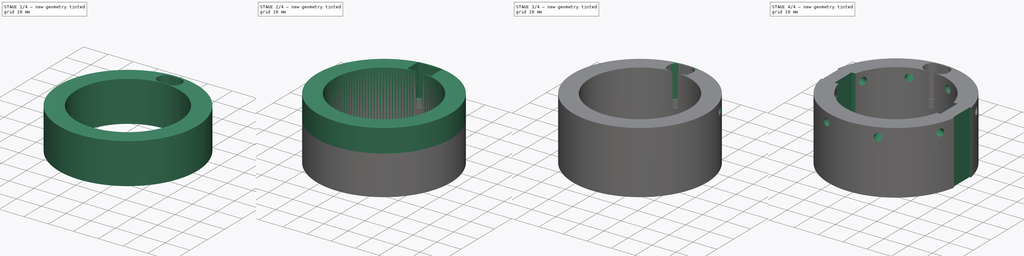
[diagram: build sequence overview — one tinted view per stage of 4, left to right]
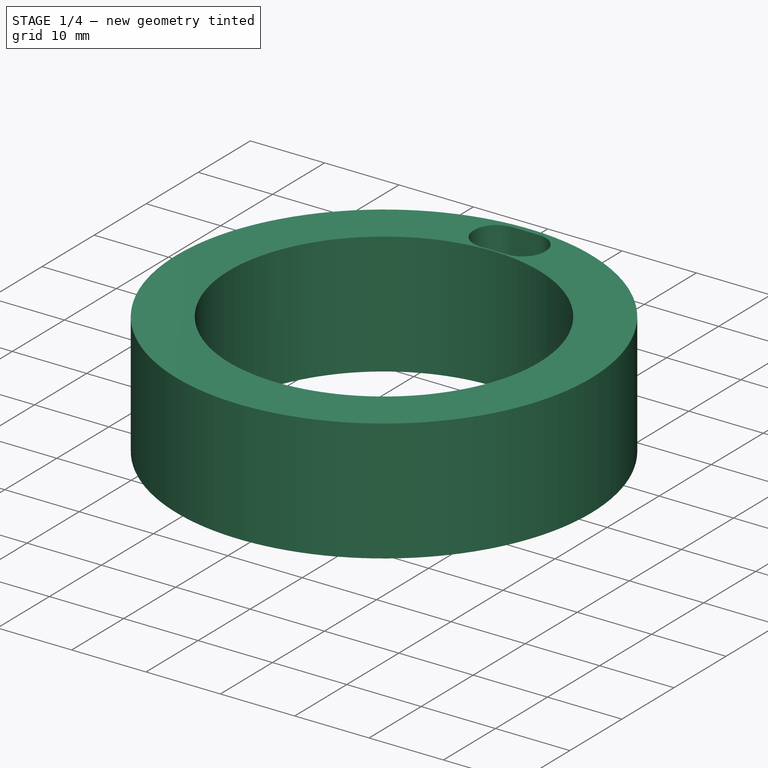
[diagram: stage 1 of 4 — iso view after this stage's code; geometry added in this stage tinted green]
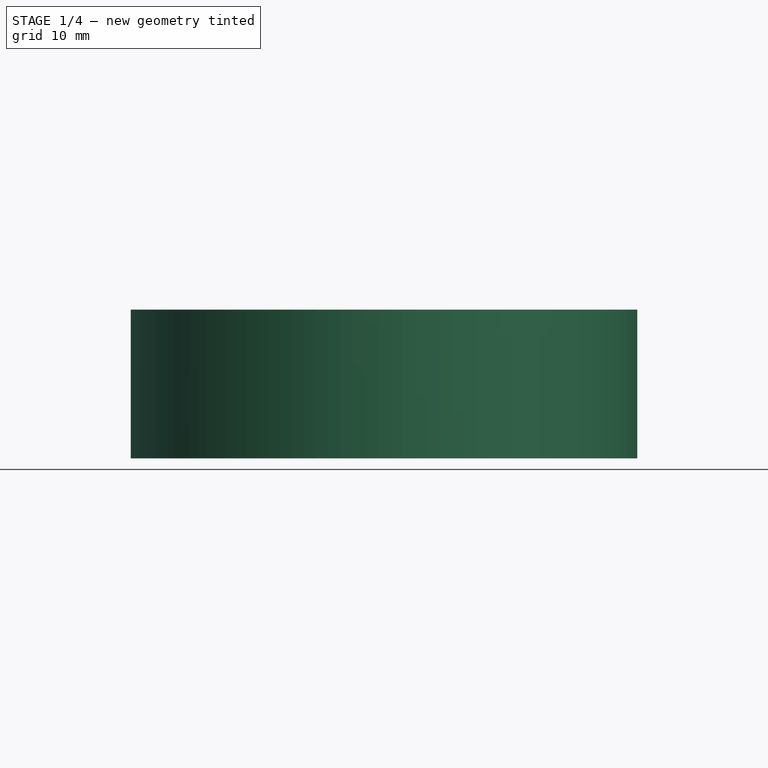
[diagram: stage 1 of 4 — front view after this stage's code; geometry added in this stage tinted green]
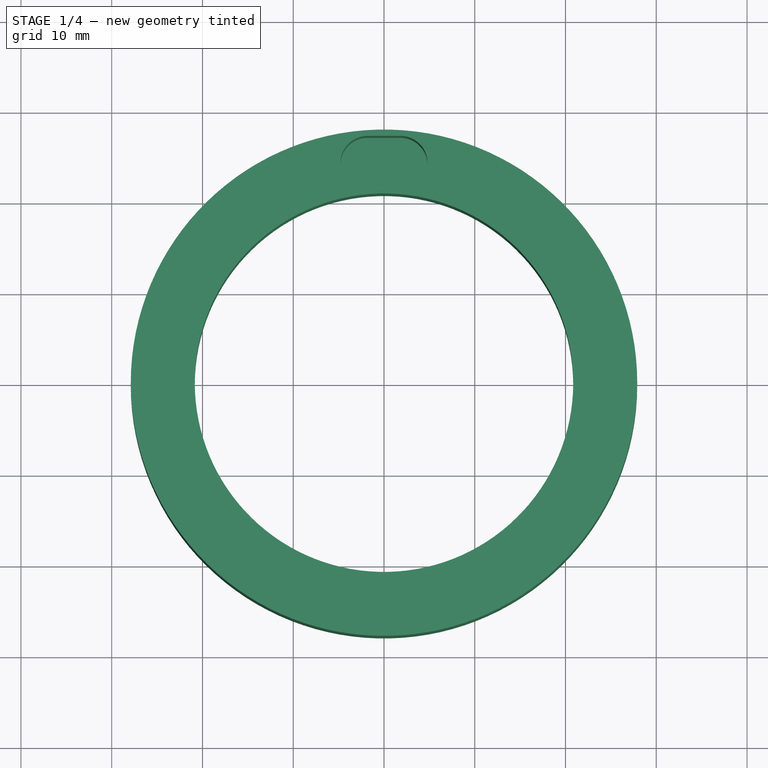
[diagram: stage 1 of 4 — top view after this stage's code; geometry added in this stage tinted green]
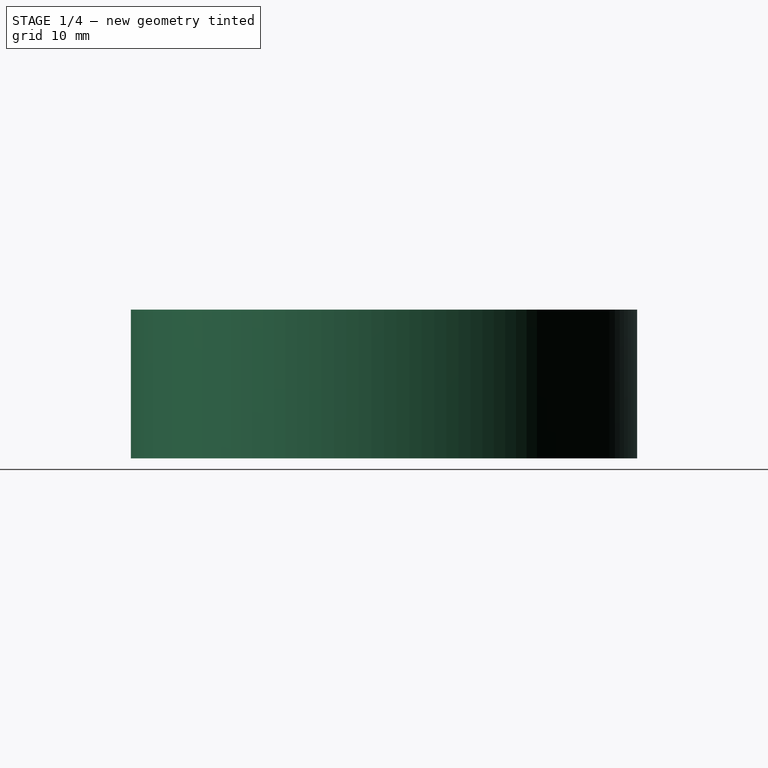
[diagram: stage 1 of 4 — right view after this stage's code; geometry added in this stage tinted green]
FCSTD DOCUMENT  (FreeCAD 1.0R39319 (Git))
Label: upper_closure
License: All rights reserved
objects: Sketcher::SketchObject×9, PartDesign::Pocket×6, PartDesign::Pad×2, PartDesign::Fillet×2, PartDesign::Plane×2, PartDesign::PolarPattern×1, PartDesign::Body×1
note: 53 computed .brp shape members not serialized (recipe doc carries the construction recipe); baked Part::Feature solids carry a one-line shape summary decoded from their .brp

FEATURE [Sketcher::SketchObject] Sketch
  ArcFitTolerance = 1e-06
  AttachmentSupport = -> [XY_Plane]
  FullyConstrained = true
  MakeInternals = false
  MapMode = 5
  sketch-geometry (2):
    g0: Circle CenterX=0 CenterY=0 CenterZ=0 NormalX=0 NormalY=0 NormalZ=1 AngleXU=0 Radius=27.9
    g1: Circle CenterX=0 CenterY=0 CenterZ=0 NormalX=0 NormalY=0 NormalZ=1 AngleXU=0 Radius=20.85
  constraints (4):
    c: Diameter(g0) = 55.8
    c: Coincident(g0,g-1)
    c: Diameter(g1) = 41.7
    c: Coincident(g1,g0)
FEATURE [PartDesign::Pad] Pad
  Direction = (0,0,1)
  Length = 16.4
  Length2 = 10
  Profile = -> Sketch
  ReferenceAxis = -> Sketch [N_Axis]
  Refine = true
  Suppressed = false
  Type = 0
FEATURE [Sketcher::SketchObject] Sketch001
  ArcFitTolerance = 1e-06
  AttachmentSupport = -> [Pad]
  ExternalGeometry = -> [Pad]
  FullyConstrained = false
  MakeInternals = false
  MapMode = 5
  Placement = pos=(0,0,16.4) rot=(0,0,1;0rad)
  sketch-geometry (8):
    g0: LineSegment StartX=-4.8 StartY=27.2 StartZ=0 EndX=4.8 EndY=27.2 EndZ=0
    g1: LineSegment StartX=4.8 StartY=27.2 StartZ=0 EndX=4.8 EndY=21.05 EndZ=0
    g2: LineSegment StartX=4.8 StartY=21.05 StartZ=0 EndX=-4.8 EndY=21.05 EndZ=0
    g3: LineSegment StartX=-4.8 StartY=21.05 StartZ=0 EndX=-4.8 EndY=27.2 EndZ=0
    g4: LineSegment [constr] StartX=-5.04771 StartY=27.9 StartZ=0 EndX=8.59016 EndY=27.9 EndZ=0
    g5: LineSegment [constr] StartX=-4.90698 StartY=27.4 StartZ=0 EndX=8.13651 EndY=27.4 EndZ=0
    g6: LineSegment [constr] StartX=-4.90698 StartY=20.85 StartZ=0 EndX=6.37861 EndY=20.85 EndZ=0
    g7: LineSegment [constr] StartX=-5.67297 StartY=24.125 StartZ=0 EndX=8.47823 EndY=24.125 EndZ=0
  constraints (18):
    c: Horizontal(g0)
    c: Coincident(g0,g1)
    c: Coincident(g1,g2)
    c: Coincident(g2,g3)
    c: Coincident(g3,g0)
    c: Horizontal(g4)
    c: Horizontal(g5)
    c: Horizontal(g6)
    c: Tangent(g6,g-4)
    c: Tangent(g4,g-3)
    c: Distance(g5,g4) = 0.5
    c: Horizontal(g7)
    c: Symmetric(g5,g6,g7)
    c: Symmetric(g0,g2,g7)
    c: Parallel(g3,g1)
    c: DistanceY(g2,g0) = 6.15
    c: DistanceX(g2,g1) = 9.6
    c: Symmetric(g2,g1,g-2)
FEATURE [PartDesign::Pocket] Pocket
  BaseFeature = -> Pad
  Direction = (0,0,-1)
  Length = 12.6
  Length2 = 5
  Profile = -> Sketch001
  ReferenceAxis = -> Sketch001 [N_Axis]
  Refine = true
  Suppressed = false
  Type = 0
FEATURE [PartDesign::Fillet] Fillet
  Base = -> Pocket [Edge12,Edge16,Edge11,Edge14]
  BaseFeature = -> Pocket
  Radius = 3
  Refine = true
  SupportTransform = false
  Suppressed = false
  UseAllEdges = false
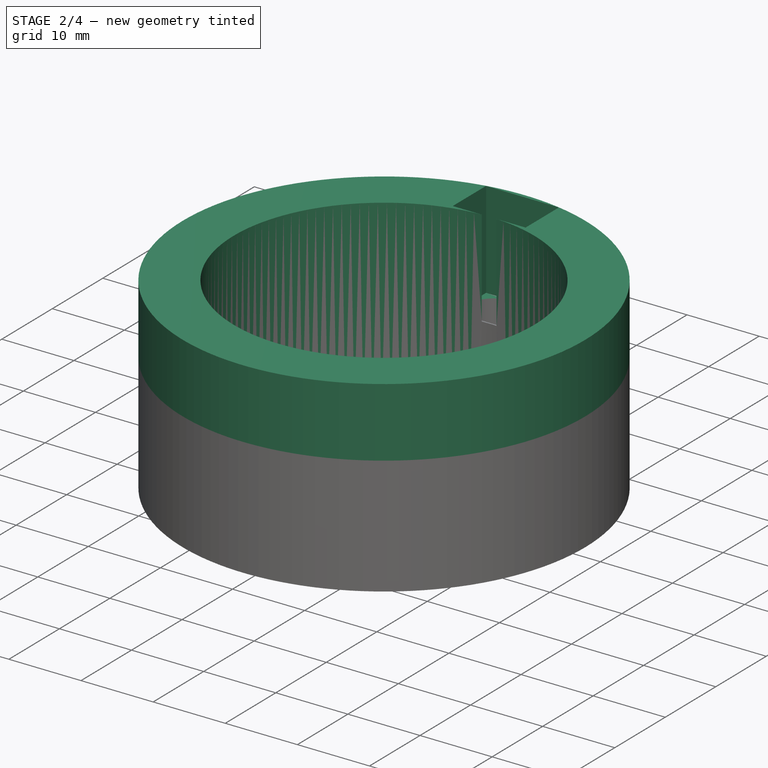
[diagram: stage 2 of 4 — iso view after this stage's code; geometry added in this stage tinted green]
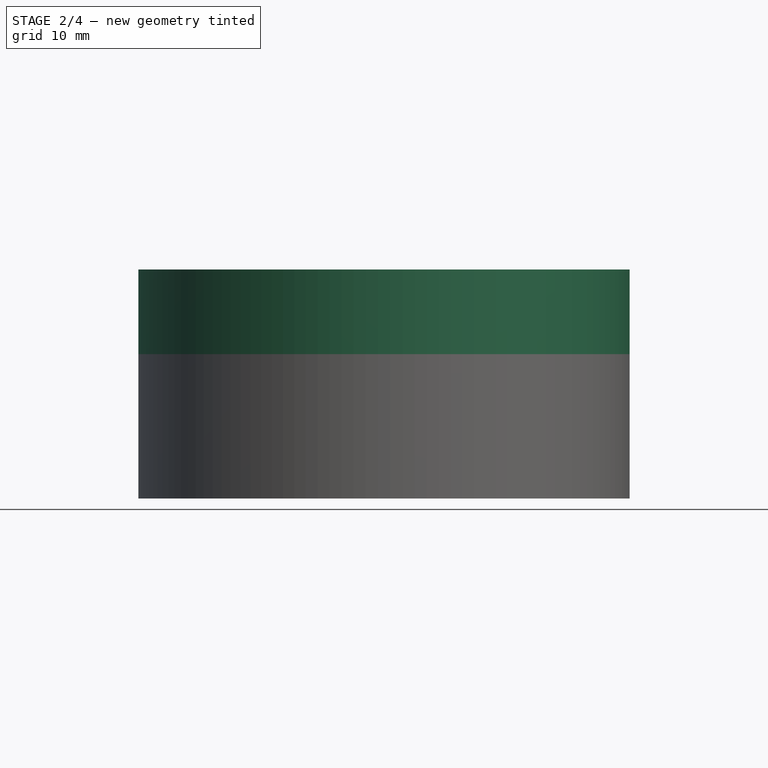
[diagram: stage 2 of 4 — front view after this stage's code; geometry added in this stage tinted green]
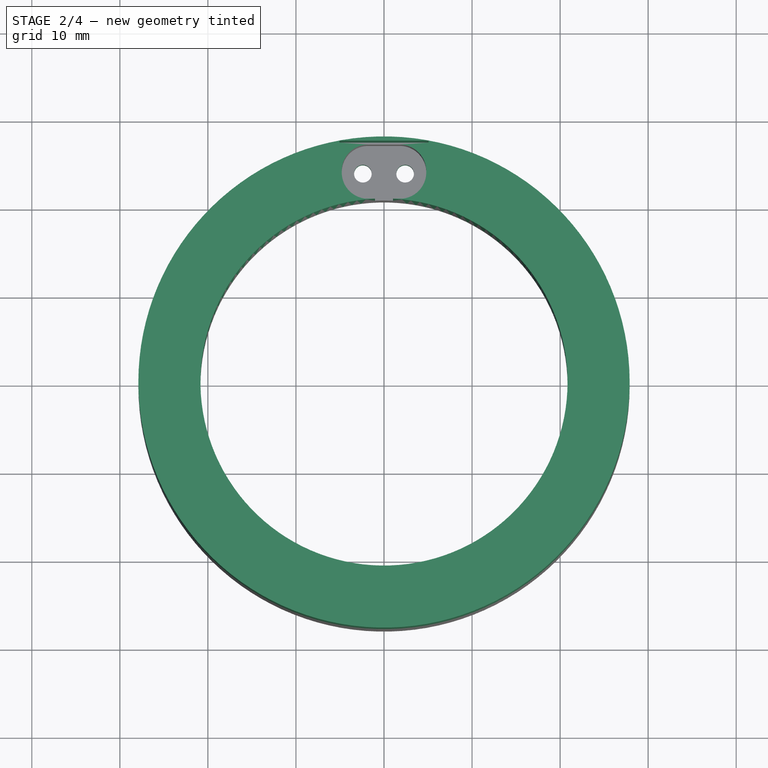
[diagram: stage 2 of 4 — top view after this stage's code; geometry added in this stage tinted green]
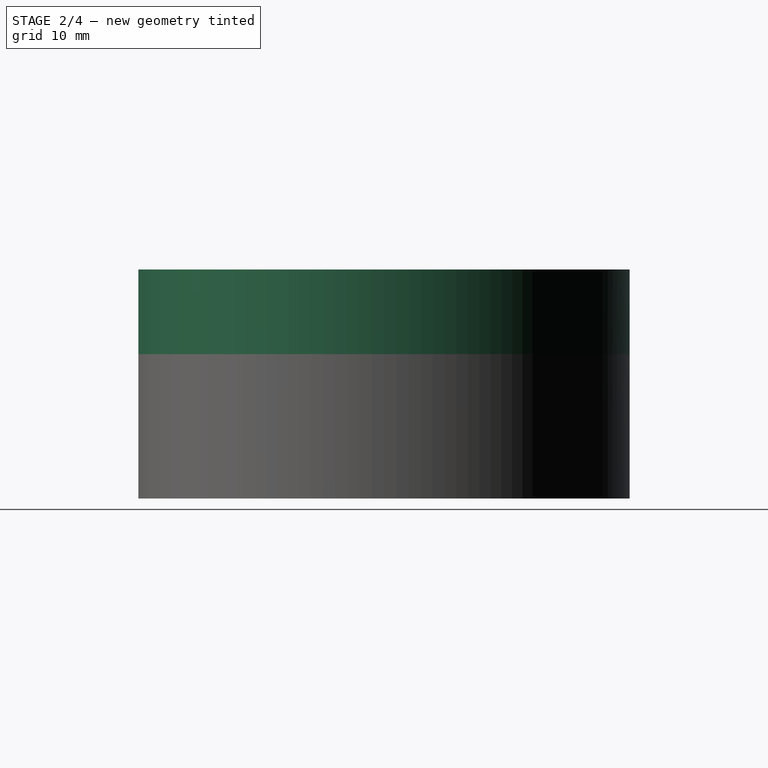
[diagram: stage 2 of 4 — right view after this stage's code; geometry added in this stage tinted green]
FEATURE [Sketcher::SketchObject] Sketch002
  ArcFitTolerance = 1e-06
  AttachmentSupport = -> [Fillet]
  ExternalGeometry = -> [Fillet]
  FullyConstrained = true
  MakeInternals = false
  MapMode = 5
  Placement = pos=(0,0,3.8) rot=(0,0,1;0rad)
  sketch-geometry (3):
    g0: LineSegment [constr] StartX=-4.8 StartY=24.05 StartZ=0 EndX=4.8 EndY=24.05 EndZ=0
    g1: Circle CenterX=-2.4 CenterY=24.05 CenterZ=0 NormalX=0 NormalY=0 NormalZ=1 AngleXU=0 Radius=1
    g2: Circle CenterX=2.4 CenterY=24.05 CenterZ=0 NormalX=0 NormalY=0 NormalZ=1 AngleXU=0 Radius=1
  constraints (7):
    c: Coincident(g0,g-4)
    c: Coincident(g0,g-3)
    c: Diameter(g1) = 2
    c: PointOnObject(g1,g0)
    c: Diameter(g2) = 2
    c: Symmetric(g1,g2,g-2)
    c: DistanceX(g1,g-1) = 2.4
FEATURE [PartDesign::Pocket] Pocket001
  BaseFeature = -> Fillet
  Direction = (0,0,-1)
  Length = 5
  Length2 = 5
  Profile = -> Sketch002
  ReferenceAxis = -> Sketch002 [N_Axis]
  Refine = true
  Suppressed = false
  Type = 1
FEATURE [Sketcher::SketchObject] Sketch003
  ArcFitTolerance = 1e-06
  AttachmentSupport = -> [Pocket001]
  ExternalGeometry = -> [Pocket001]
  FullyConstrained = true
  MakeInternals = false
  MapMode = 5
  Placement = pos=(0,0,16.4) rot=(0,0,1;0rad)
  sketch-geometry (2):
    g0: Circle CenterX=0 CenterY=0 CenterZ=0 NormalX=0 NormalY=0 NormalZ=1 AngleXU=0 Radius=20.85
    g1: Circle CenterX=0 CenterY=0 CenterZ=0 NormalX=0 NormalY=0 NormalZ=1 AngleXU=0 Radius=27.9
  constraints (4):
    c: Coincident(g0,g-1)
    c: Tangent(g0,g-3)
    c: Coincident(g1,g0)
    c: Tangent(g1,g-4)
FEATURE [PartDesign::Pad] Pad001
  BaseFeature = -> Pocket001
  Direction = (0,0,1)
  Length = 9.6
  Length2 = 10
  Profile = -> Sketch003
  ReferenceAxis = -> Sketch003 [N_Axis]
  Refine = true
  Suppressed = false
  Type = 0
FEATURE [Sketcher::SketchObject] Sketch004
  ArcFitTolerance = 1e-06
  AttachmentSupport = -> [Pad001]
  ExternalGeometry = -> [Pad001]
  FullyConstrained = false
  MakeInternals = false
  MapMode = 5
  Placement = pos=(0,0,26) rot=(0,0,1;0rad)
  sketch-geometry (8):
    g0: LineSegment StartX=-5.05 StartY=27.425 StartZ=0 EndX=-5.05 EndY=20.825 EndZ=0
    g1: LineSegment StartX=-5.05 StartY=20.825 StartZ=0 EndX=5.05 EndY=20.825 EndZ=0
    g2: LineSegment StartX=5.05 StartY=20.825 StartZ=0 EndX=5.05 EndY=27.425 EndZ=0
    g3: LineSegment StartX=5.05 StartY=27.425 StartZ=0 EndX=-5.05 EndY=27.425 EndZ=0
    g4: LineSegment [constr] StartX=-6.48624 StartY=27.9 StartZ=0 EndX=6.96451 EndY=27.9 EndZ=0
    g5: LineSegment [constr] StartX=-6.37691 StartY=27.4 StartZ=0 EndX=6.75302 EndY=27.4 EndZ=0
    g6: LineSegment [constr] StartX=-6.37691 StartY=20.85 StartZ=0 EndX=6.16085 EndY=20.85 EndZ=0
    g7: LineSegment [constr] StartX=-6.25129 StartY=24.125 StartZ=0 EndX=8.25229 EndY=24.125 EndZ=0
  constraints (18):
    c: Coincident(g0,g1)
    c: Coincident(g1,g2)
    c: Coincident(g2,g3)
    c: Coincident(g3,g0)
    c: Horizontal(g4)
    c: Horizontal(g5)
    c: Horizontal(g6)
    c: Tangent(g4,g-3)
    c: Tangent(g6,g-4)
    c: DistanceY(g5,g4) = 0.5
    c: Horizontal(g7)
    c: Symmetric(g5,g6,g7)
    c: Symmetric(g0,g0,g7)
    c: Parallel(g0,g2)
    c: Horizontal(g3)
    c: Symmetric(g0,g1,g-2)
    c: DistanceY(g0,g0) = 6.6
    c: DistanceX(g0,g1) = 10.1
FEATURE [PartDesign::Pocket] Pocket002
  BaseFeature = -> Pad001
  Direction = (0,0,-1)
  Length = 13.4
  Length2 = 5
  Profile = -> Sketch004
  ReferenceAxis = -> Sketch004 [N_Axis]
  Refine = true
  Suppressed = false
  Type = 0
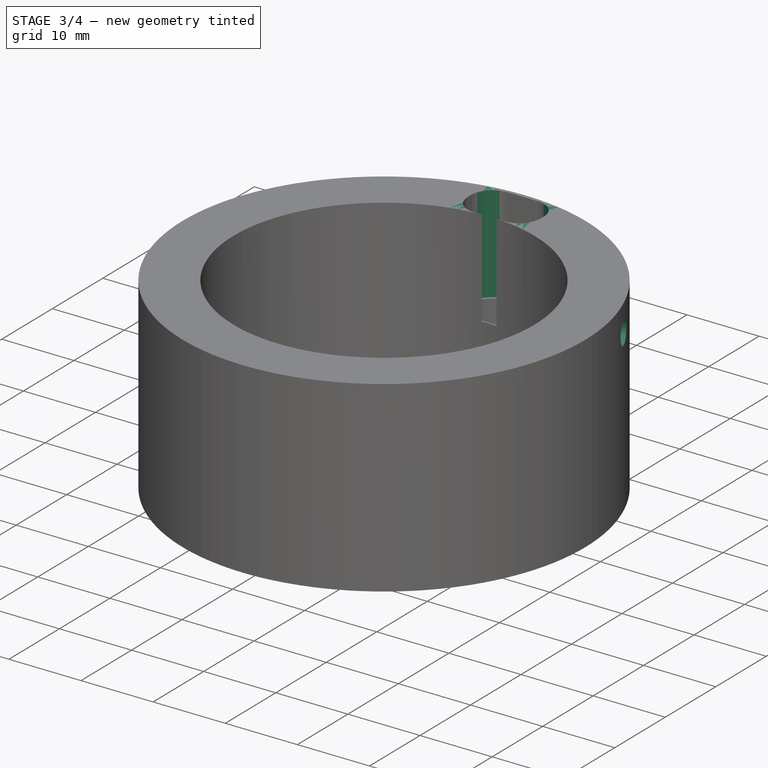
[diagram: stage 3 of 4 — iso view after this stage's code; geometry added in this stage tinted green]
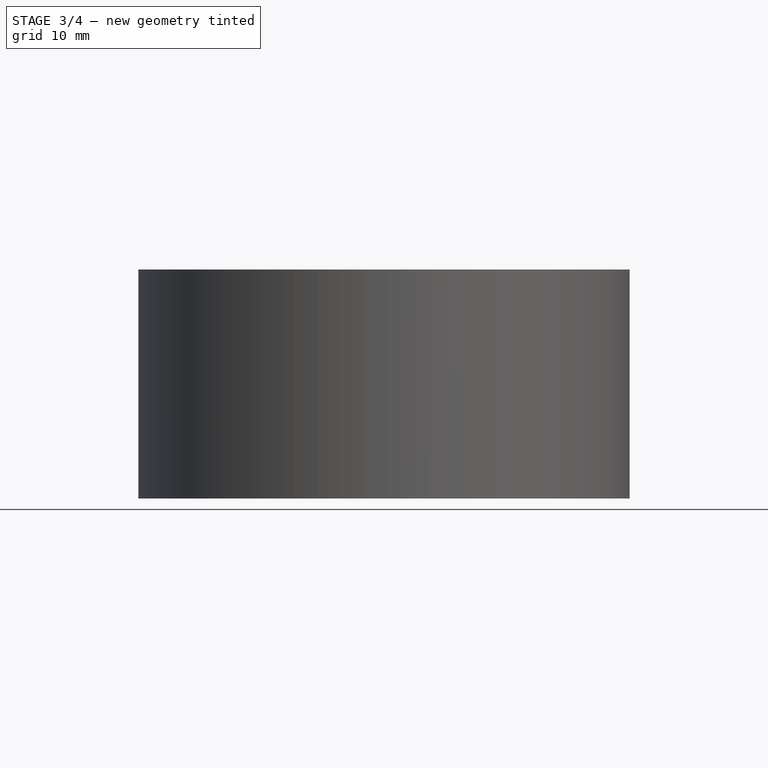
[diagram: stage 3 of 4 — front view after this stage's code; geometry added in this stage tinted green]
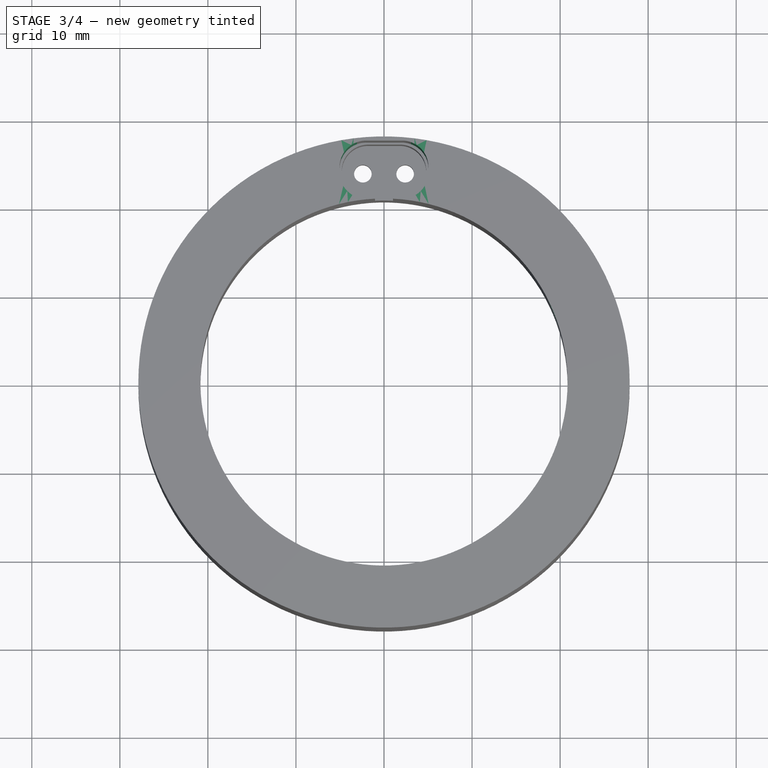
[diagram: stage 3 of 4 — top view after this stage's code; geometry added in this stage tinted green]
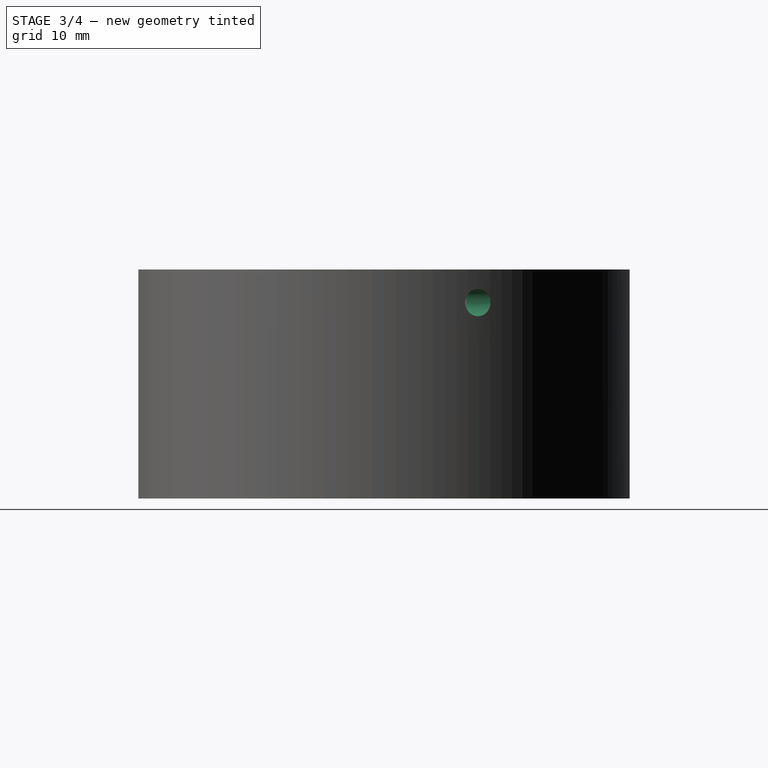
[diagram: stage 3 of 4 — right view after this stage's code; geometry added in this stage tinted green]
FEATURE [PartDesign::Fillet] Fillet001
  Base = -> Pocket002 [Edge29,Edge30,Edge32,Edge42]
  BaseFeature = -> Pocket002
  Radius = 3
  Refine = true
  SupportTransform = false
  Suppressed = false
  UseAllEdges = false
FEATURE [Sketcher::SketchObject] Sketch005
  ArcFitTolerance = 1e-06
  AttachmentSupport = -> [Fillet001]
  ExternalGeometry = -> [Fillet001]
  FullyConstrained = true
  MakeInternals = false
  MapMode = 5
  Placement = pos=(0,0,26) rot=(0,0,1;0rad)
  sketch-geometry (3):
    g0: LineSegment [constr] StartX=0 StartY=0 StartZ=0 EndX=19.7283 EndY=19.7283 EndZ=0
    g1: LineSegment StartX=0 StartY=0 StartZ=0 EndX=25.7762 EndY=10.6769 EndZ=0
    g2: LineSegment StartX=0 StartY=0 StartZ=0 EndX=10.6769 EndY=25.7762 EndZ=0
  constraints (9):
    c: Coincident(g0,g-1)
    c: PointOnObject(g0,g-3)
    c: Coincident(g1,g0)
    c: PointOnObject(g1,g-3)
    c: Coincident(g2,g0)
    c: PointOnObject(g2,g-3)
    c: Angle(g-1,g0) = 0.785398
    c: Angle(g1,g2) = 0.785398
    c: Angle(g0,g2) = 0.392699
FEATURE [PartDesign::Plane] DatumPlane
  AttachmentSupport = -> [Sketch005]
  Length = 84.197
  MapMode = 7
  Placement = pos=(10.6769,25.7762,26) rot=(0.962637,-0.19148,-0.19148;1.60887rad)
  ResizeMode = 0
  Width = 63.1254
FEATURE [PartDesign::Plane] DatumPlane001
  AttachmentSupport = -> [Sketch005]
  Length = 84.727
  MapMode = 7
  Placement = pos=(25.7762,10.6769,26) rot=(0.726831,-0.485653,-0.485653;1.88458rad)
  ResizeMode = 0
  Width = 63.1665
FEATURE [Sketcher::SketchObject] Sketch006
  ArcFitTolerance = 1e-06
  AttachmentSupport = -> [DatumPlane]
  FullyConstrained = true
  MakeInternals = false
  MapMode = 5
  Placement = pos=(10.6769,25.7762,26) rot=(0.962637,-0.19148,-0.19148;1.60887rad)
  sketch-geometry (1):
    g0: Circle CenterX=0 CenterY=-3.75 CenterZ=0 NormalX=0 NormalY=0 NormalZ=1 AngleXU=0 Radius=1.55
  constraints (3):
    c: Diameter(g0) = 3.1
    c: PointOnObject(g0,g-2)
    c: DistanceY(g0,g-1) = 3.75
FEATURE [Sketcher::SketchObject] Sketch007
  ArcFitTolerance = 1e-06
  AttachmentSupport = -> [DatumPlane001]
  FullyConstrained = true
  MakeInternals = false
  MapMode = 5
  Placement = pos=(25.7762,10.6769,26) rot=(0.726831,-0.485653,-0.485653;1.88458rad)
  sketch-geometry (1):
    g0: Circle CenterX=0 CenterY=-3.75 CenterZ=0 NormalX=0 NormalY=0 NormalZ=1 AngleXU=0 Radius=1.55
  constraints (3):
    c: Diameter(g0) = 3.1
    c: PointOnObject(g0,g-2)
    c: DistanceY(g0,g-1) = 3.75
FEATURE [PartDesign::Pocket] Pocket003  label="sede_viti_1"
  BaseFeature = -> Fillet001
  Direction = (0.92388,0.382683,2e-16)
  Length = 8
  Length2 = 5
  Profile = -> Sketch007
  ReferenceAxis = -> Sketch007 [N_Axis]
  Refine = true
  Reversed = true
  Suppressed = false
  Type = 0
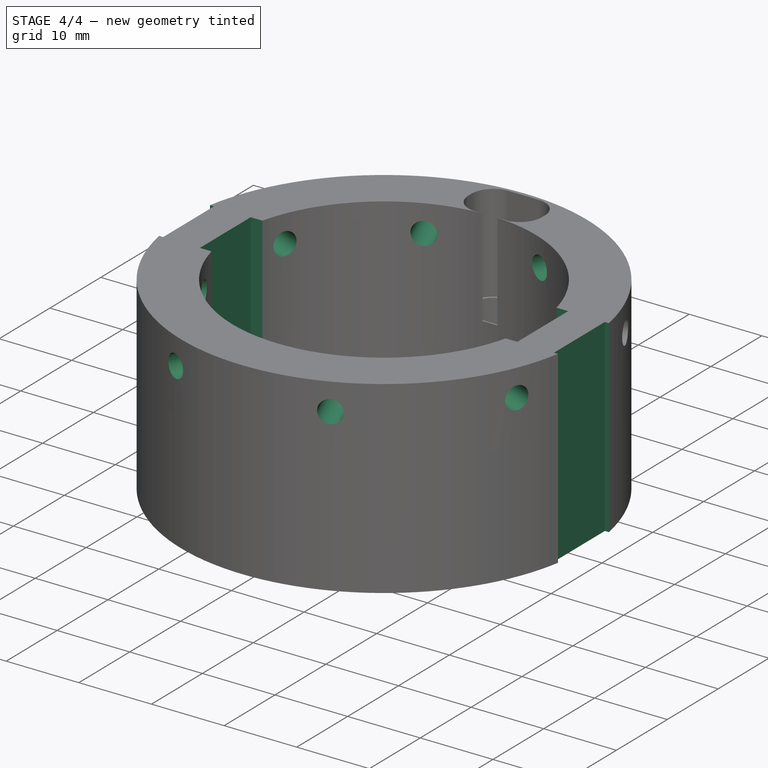
[diagram: stage 4 of 4 — iso view after this stage's code; geometry added in this stage tinted green]
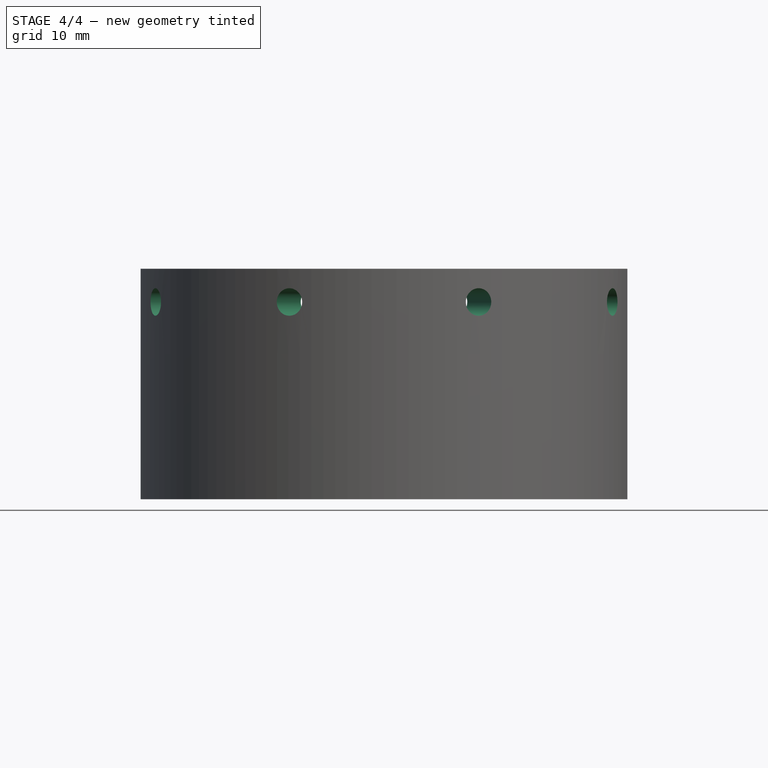
[diagram: stage 4 of 4 — front view after this stage's code; geometry added in this stage tinted green]
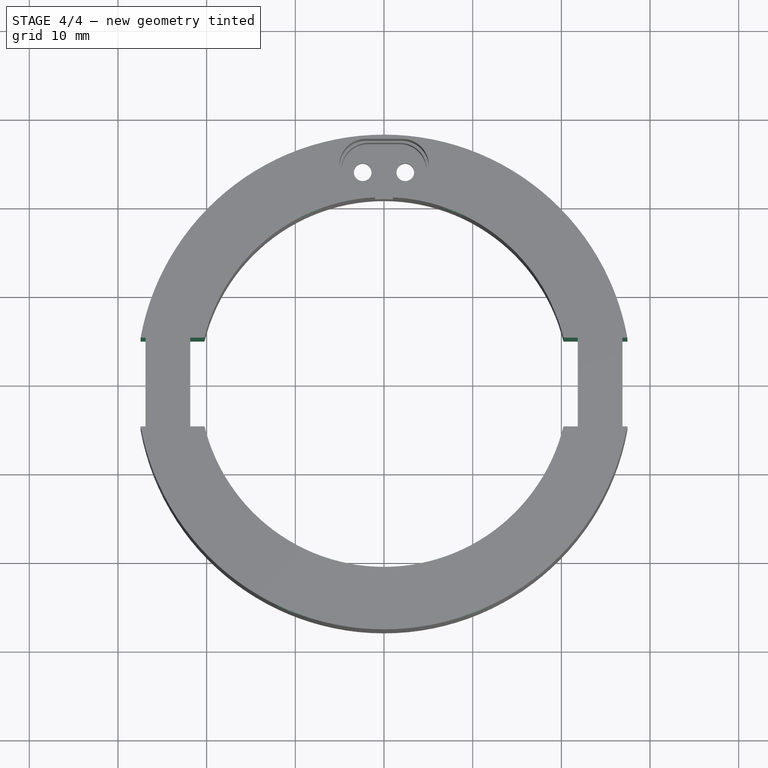
[diagram: stage 4 of 4 — top view after this stage's code; geometry added in this stage tinted green]
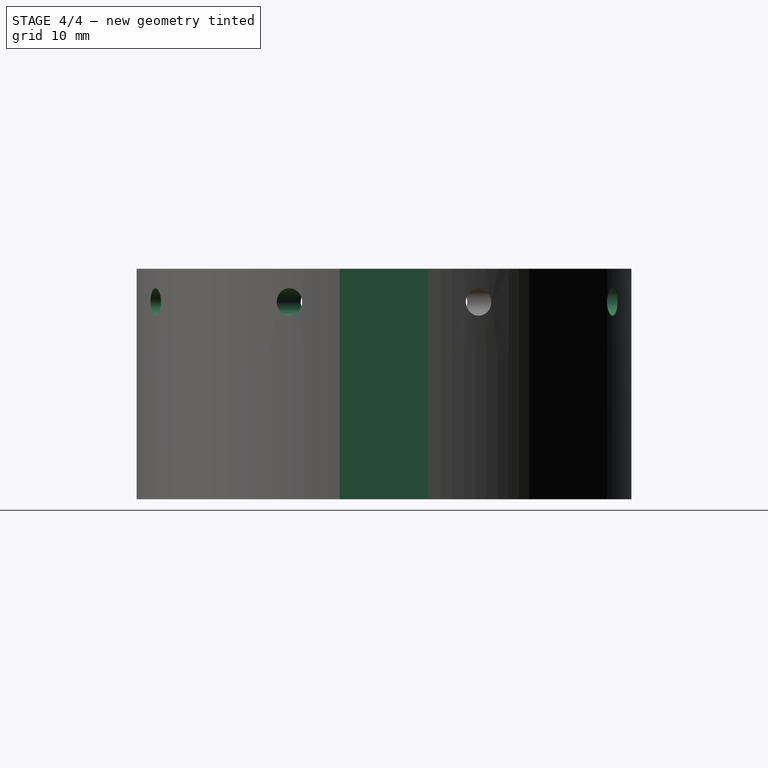
[diagram: stage 4 of 4 — right view after this stage's code; geometry added in this stage tinted green]
FEATURE [PartDesign::Pocket] Pocket004  label="sede_viti_2"
  BaseFeature = -> Pocket003
  Direction = (0.382683,0.92388,0)
  Length = 8
  Length2 = 5
  Profile = -> Sketch006
  ReferenceAxis = -> Sketch006 [N_Axis]
  Refine = true
  Reversed = true
  Suppressed = false
  Type = 0
FEATURE [PartDesign::PolarPattern] PolarPattern
  Angle = 360
  Axis = -> Z_Axis
  BaseFeature = -> Pocket004
  Mode = 0
  Occurrences = 4
  Offset = 120
  Originals = -> [Pocket003,Pocket004]
  Refine = true
  Suppressed = false
  TransformMode = 0
FEATURE [Sketcher::SketchObject] Sketch008
  ArcFitTolerance = 1e-06
  AttachmentSupport = -> [PolarPattern]
  ExternalGeometry = -> [PolarPattern]
  FullyConstrained = false
  MakeInternals = false
  MapMode = 5
  Placement = pos=(0,0,26) rot=(0,0,1;0rad)
  sketch-geometry (17):
    g0: LineSegment StartX=-14.8187 StartY=5 StartZ=0 EndX=-14.8187 EndY=-5 EndZ=0
    g1: LineSegment StartX=-21.85 StartY=5 StartZ=0 EndX=-21.85 EndY=-5 EndZ=0
    g2: LineSegment StartX=14.8187 StartY=5 StartZ=0 EndX=14.8187 EndY=-5 EndZ=0
    g3: LineSegment StartX=21.85 StartY=5 StartZ=0 EndX=21.85 EndY=-5 EndZ=0
    g4: LineSegment StartX=-27.9 StartY=5 StartZ=0 EndX=-27.9 EndY=-5 EndZ=0
    g5: LineSegment StartX=-26.9 StartY=5 StartZ=0 EndX=-26.9 EndY=-5 EndZ=0
    g6: LineSegment StartX=26.9 StartY=5 StartZ=0 EndX=26.9 EndY=-5 EndZ=0
    g7: LineSegment StartX=27.9 StartY=5 StartZ=0 EndX=27.9 EndY=-5 EndZ=0
    g8: LineSegment StartX=-27.9 StartY=5 StartZ=0 EndX=-26.9 EndY=5 EndZ=0
    g9: LineSegment StartX=-27.9 StartY=-5 StartZ=0 EndX=-26.9 EndY=-5 EndZ=0
    g10: LineSegment StartX=-14.8187 StartY=5 StartZ=0 EndX=-21.85 EndY=5 EndZ=0
    g11: LineSegment StartX=-14.8187 StartY=-5 StartZ=0 EndX=-21.85 EndY=-5 EndZ=0
    g12: LineSegment StartX=14.8187 StartY=5 StartZ=0 EndX=21.85 EndY=5 EndZ=0
    g13: LineSegment StartX=14.8187 StartY=-5 StartZ=0 EndX=21.85 EndY=-5 EndZ=0
    g14: LineSegment StartX=26.9 StartY=5 StartZ=0 EndX=27.9 EndY=5 EndZ=0
    g15: LineSegment StartX=26.9 StartY=-5 StartZ=0 EndX=27.9 EndY=-5 EndZ=0
    g16: LineSegment [constr] StartX=-20.85 StartY=5.29262 StartZ=0 EndX=-20.85 EndY=-6.80461 EndZ=0
  constraints (41):
    c: Vertical(g1)
    c: Vertical(g3)
    c: Vertical(g5)
    c: Vertical(g7)
    c: Vertical(g6)
    c: Tangent(g4,g-4)
    c: Coincident(g8,g4)
    c: Coincident(g8,g5)
    c: Coincident(g9,g4)
    c: Coincident(g9,g5)
    c: Coincident(g10,g0)
    c: Coincident(g10,g1)
    c: Coincident(g11,g0)
    c: Coincident(g11,g1)
    c: Coincident(g12,g2)
    c: Coincident(g12,g3)
    c: Coincident(g13,g2)
    c: Coincident(g13,g3)
    c: Coincident(g14,g6)
    c: Coincident(g14,g7)
    c: Coincident(g15,g6)
    c: Coincident(g15,g7)
    c: Horizontal(g8)
    c: Horizontal(g9)
    c: Horizontal(g11)
    c: Horizontal(g10)
    c: Horizontal(g13)
    c: Horizontal(g15)
    c: Horizontal(g14)
    c: Symmetric(g4,g4,g-1)
    c: Symmetric(g0,g0,g-1)
    c: DistanceY(g4,g4) = 10
    c: DistanceY(g1,g1) = 10
    c: Distance(g4,g5) = 1
    c: Vertical(g16)
    c: Tangent(g-3,g16)
    c: DistanceX(g1,g16) = 1
    c: Symmetric(g1,g3,g-2)
    c: Symmetric(g0,g2,g-2)
    c: Symmetric(g4,g7,g-2)
    c: Symmetric(g2,g0,g-2)
FEATURE [PartDesign::Pocket] Pocket005
  BaseFeature = -> PolarPattern
  Direction = (0,0,-1)
  Length = 5
  Length2 = 5
  Profile = -> Sketch008
  ReferenceAxis = -> Sketch008 [N_Axis]
  Refine = true
  Suppressed = false
  Type = 1
FEATURE [PartDesign::Body] Body
  AllowCompound = false
  Group = -> [Sketch,Pad,Sketch001,Pocket,Fillet,Sketch002,Pocket001,Sketch003,Pad001,Sketch004,Pocket002,Fillet001,Sketch005,DatumPlane,DatumPlane001,Sketch006,Sketch007,Pocket003,Pocket004,PolarPattern,Sketch008,Pocket005]
  Origin = -> Origin
  Tip = -> Pocket005
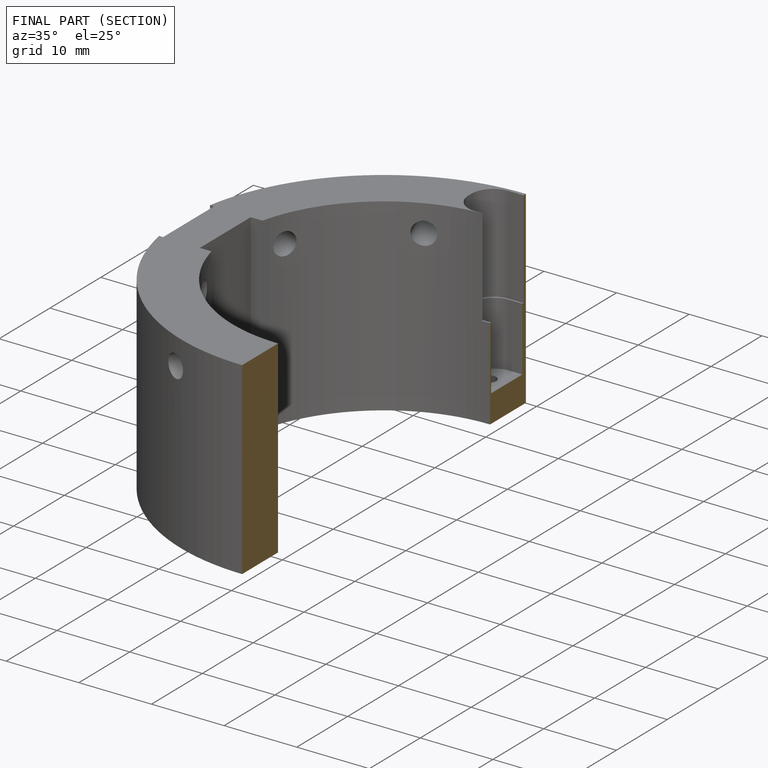
[diagram: finished part — half-section view (interior)]
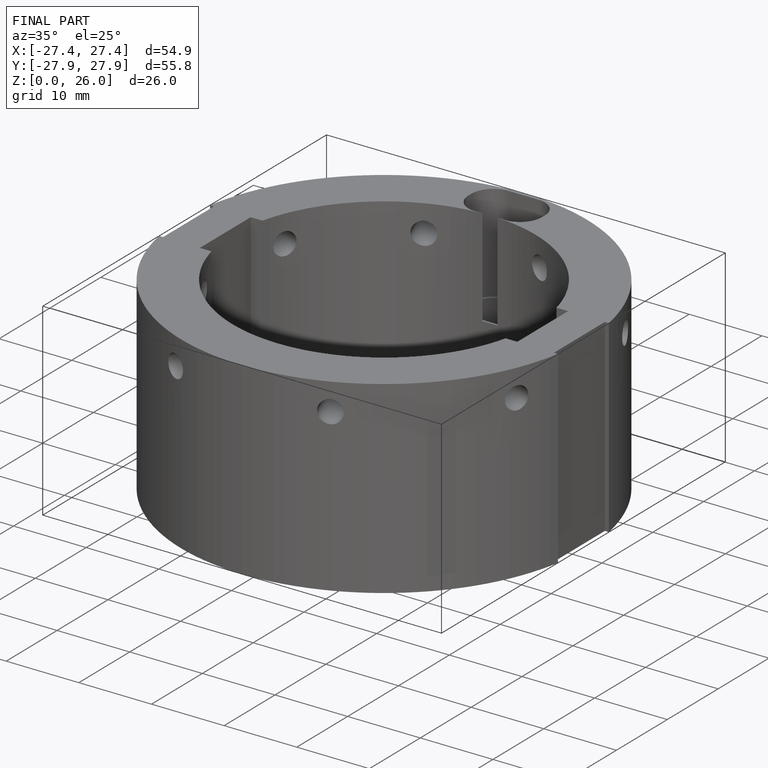
[diagram: finished part — iso view with bounding-box wireframe]
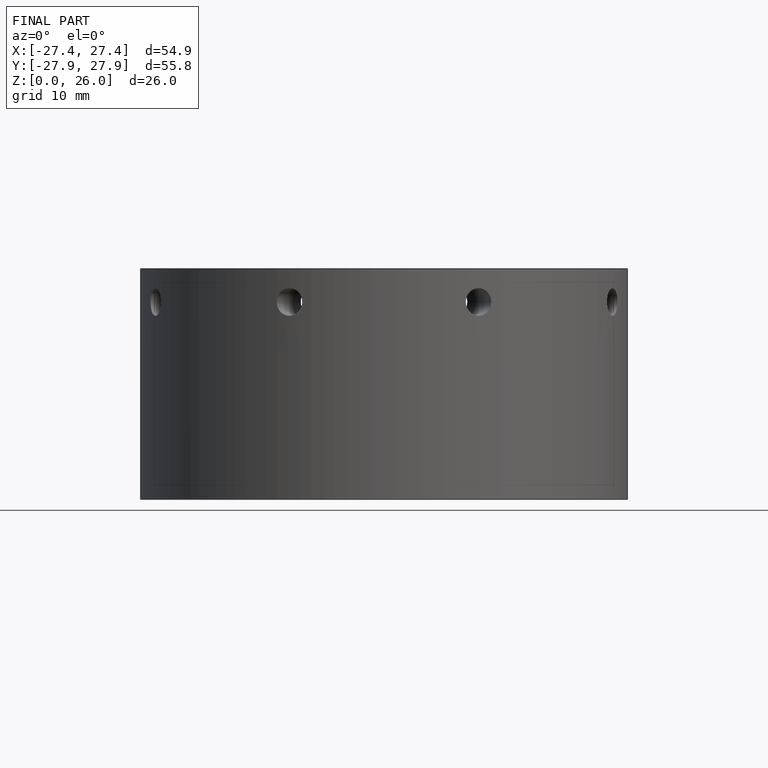
[diagram: finished part — front view with bounding-box wireframe]
